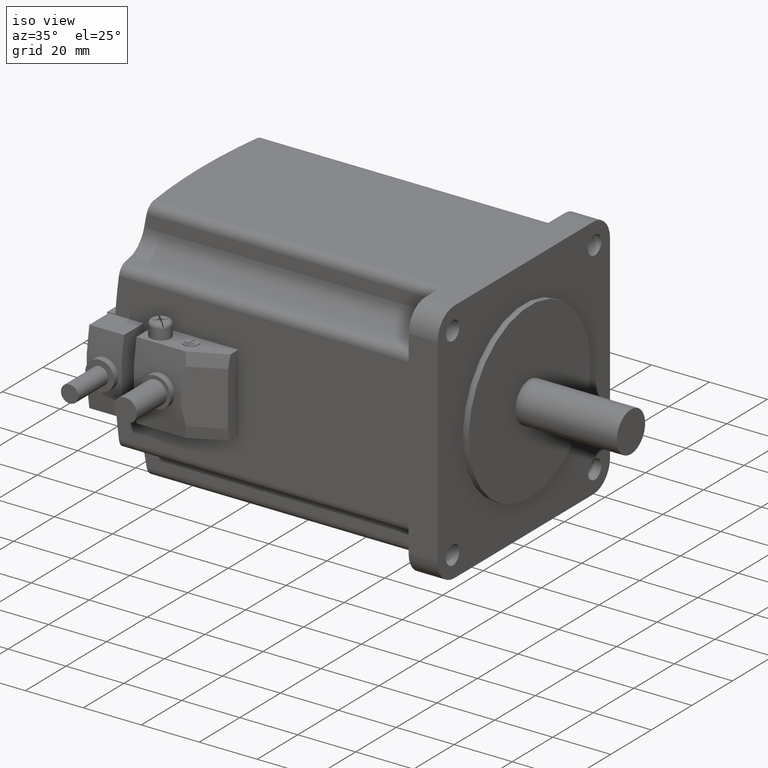
[diagram: clean part render]
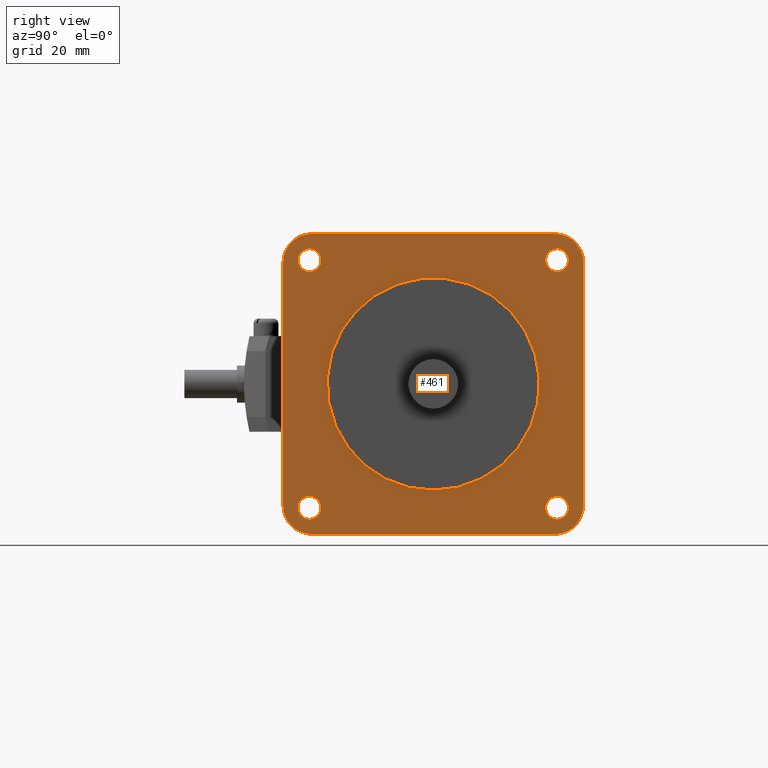
[diagram: tour spotlight — one face highlighted and labeled with its STEP entity id]
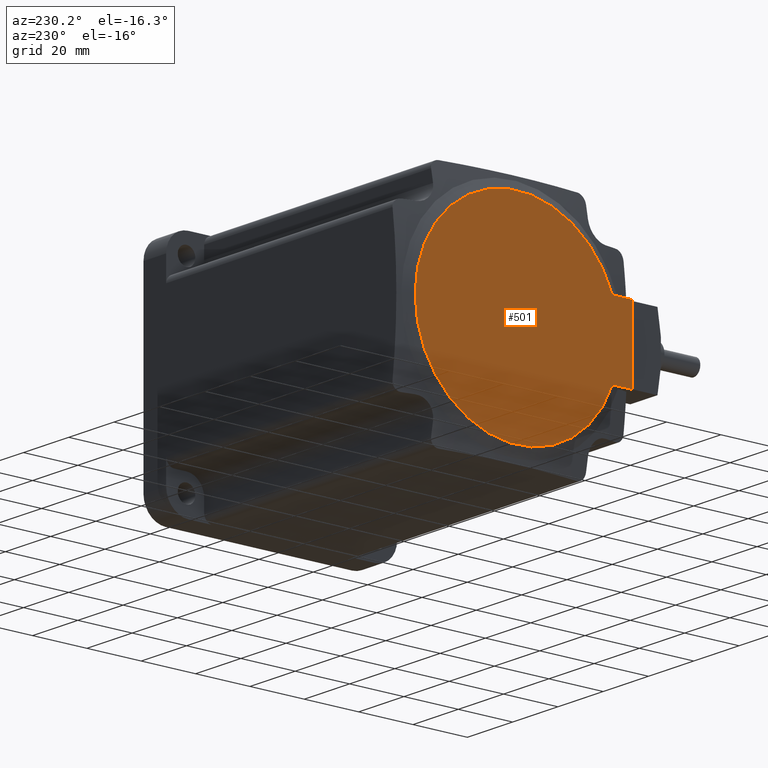
[diagram: tour spotlight — one face highlighted and labeled with its STEP entity id]
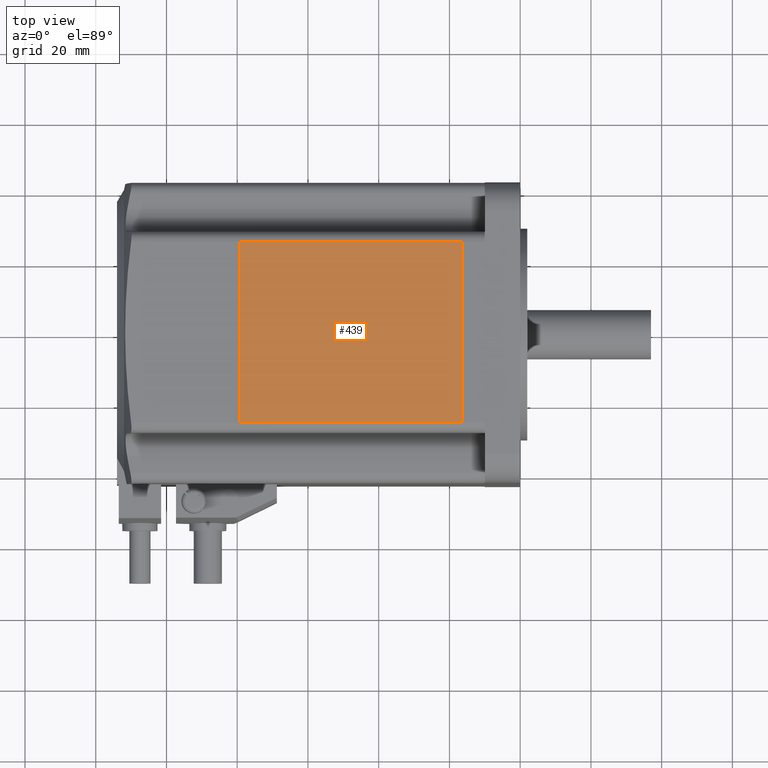
[diagram: tour spotlight — one face highlighted and labeled with its STEP entity id]
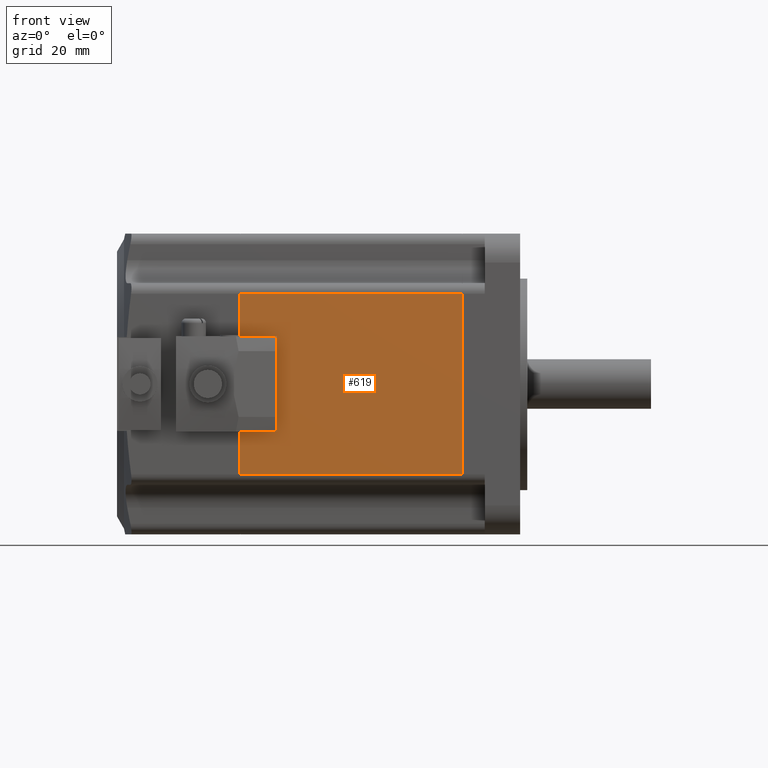
[diagram: tour spotlight — one face highlighted and labeled with its STEP entity id]
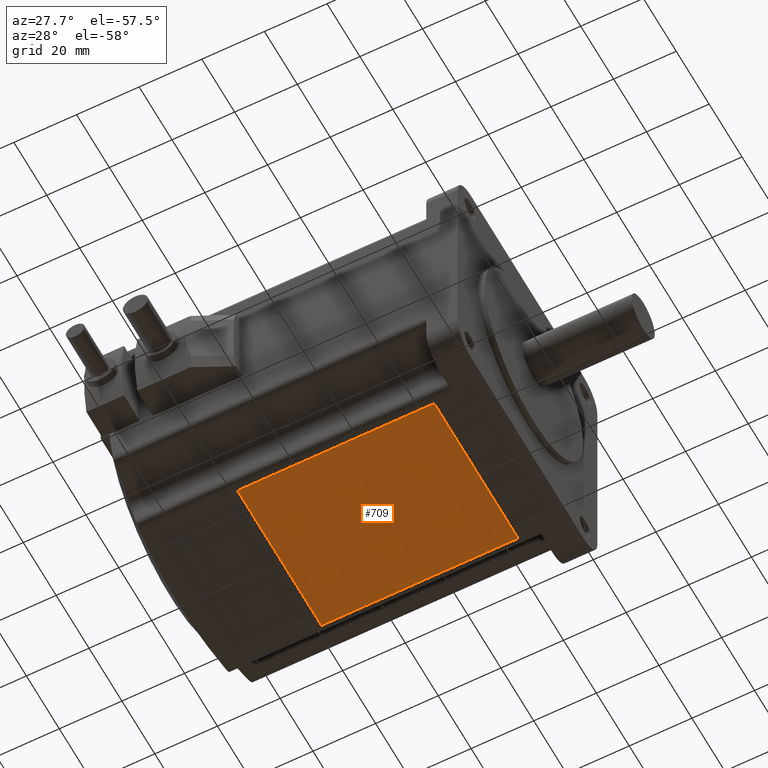
[diagram: tour spotlight — one face highlighted and labeled with its STEP entity id]
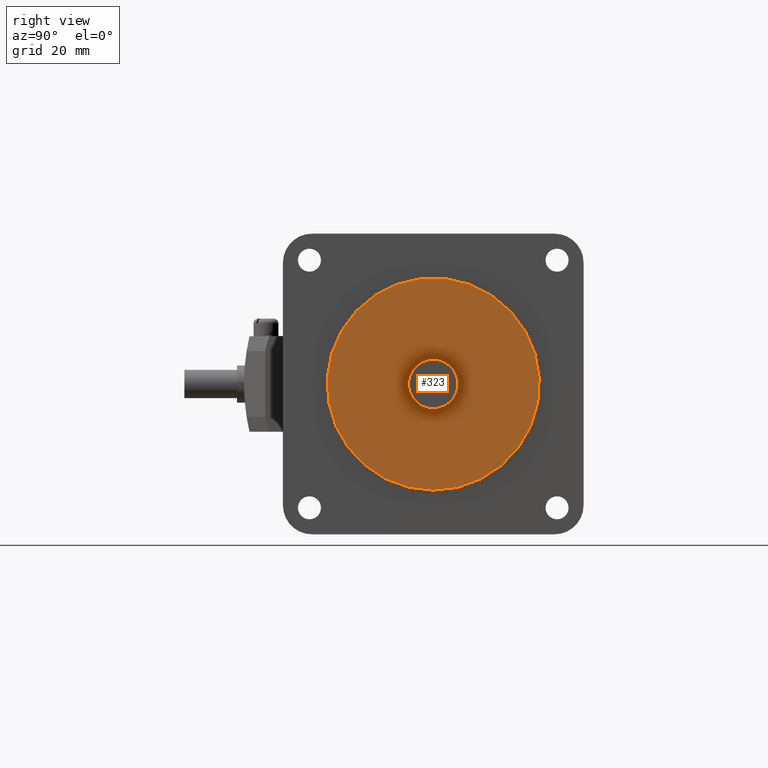
[diagram: tour spotlight — one face highlighted and labeled with its STEP entity id]
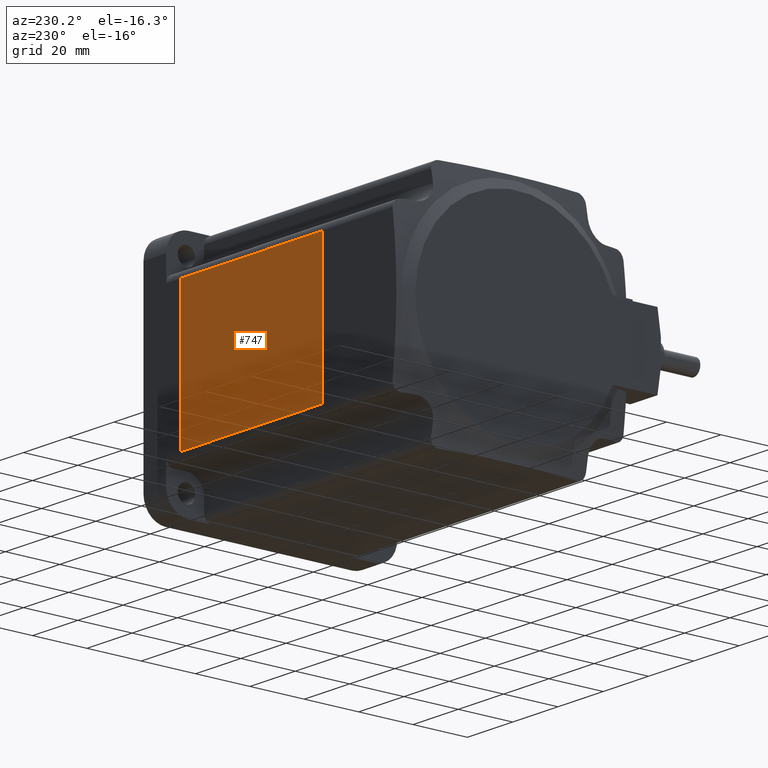
[diagram: tour spotlight — one face highlighted and labeled with its STEP entity id]
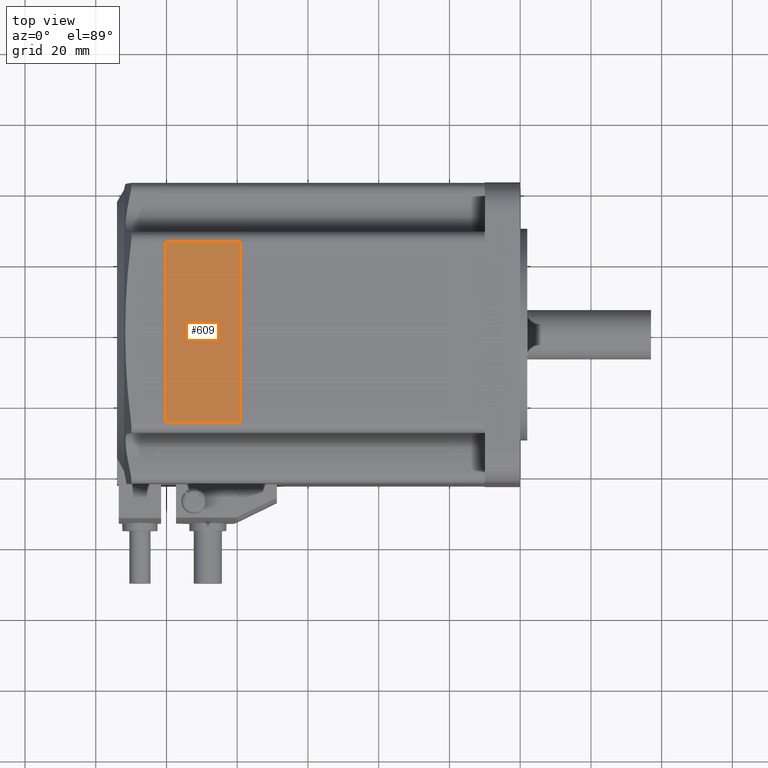
[diagram: tour spotlight — one face highlighted and labeled with its STEP entity id]
A machine part: a face-by-face anatomy tour. The part has 261 B-rep faces; the first image is the clean iso view, then the 8 largest visible faces are spotlighted one at a time (largest first), each with its STEP entity span.

Face 1 — right view, entity #461. In plain terms, the highlighted planar face has unit normal (1, 0, 0).
Definition (entity closure, byte-faithful):
#461 = ADVANCED_FACE( '', ( #1100, #1101, #1102, #1103, #1104, #1105 ), #1106, .T. );
#1100 = FACE_BOUND( '', #1928, .T. );
#1101 = FACE_BOUND( '', #1929, .T. );
#1102 = FACE_BOUND( '', #1930, .T. );
#1103 = FACE_BOUND( '', #1931, .T. );
#1104 = FACE_BOUND( '', #1932, .T. );
#1105 = FACE_OUTER_BOUND( '', #1933, .T. );
#1106 = PLANE( '', #1934 );
#1928 = EDGE_LOOP( '', ( #3280 ) );
#1929 = EDGE_LOOP( '', ( #3281 ) );
#1930 = EDGE_LOOP( '', ( #3282 ) );
#1931 = EDGE_LOOP( '', ( #3283 ) );
#1932 = EDGE_LOOP( '', ( #3284 ) );
#1933 = EDGE_LOOP( '', ( #3285, #3286, #3287, #3288, #3289, #3290, #3291, #3292 ) );
#1934 = AXIS2_PLACEMENT_3D( '', #3293, #3294, #3295 );
#3280 = ORIENTED_EDGE( '', *, *, #4937, .F. );
#3281 = ORIENTED_EDGE( '', *, *, #5396, .F. );
#3282 = ORIENTED_EDGE( '', *, *, #4979, .F. );
#3283 = ORIENTED_EDGE( '', *, *, #5397, .F. );
#3284 = ORIENTED_EDGE( '', *, *, #5212, .F. );
#3285 = ORIENTED_EDGE( '', *, *, #5301, .T. );
#3286 = ORIENTED_EDGE( '', *, *, #5398, .T. );
#3287 = ORIENTED_EDGE( '', *, *, #5018, .T. );
#3288 = ORIENTED_EDGE( '', *, *, #5208, .T. );
#3289 = ORIENTED_EDGE( '', *, *, #5399, .T. );
#3290 = ORIENTED_EDGE( '', *, *, #5226, .T. );
#3291 = ORIENTED_EDGE( '', *, *, #4951, .T. );
#3292 = ORIENTED_EDGE( '', *, *, #5400, .T. );
#3293 = CARTESIAN_POINT( '', ( 0.000000000000000, 34.3000000000000, 34.3000000000000 ) );
#3294 = DIRECTION( '', ( 1.00000000000000, 0.000000000000000, 0.000000000000000 ) );
#3295 = DIRECTION( '', ( 0.000000000000000, 0.000000000000000, -1.00000000000000 ) );
#4937 = EDGE_CURVE( '', #5911, #5911, #5912, .T. );
#4951 = EDGE_CURVE( '', #5937, #5935, #5938, .T. );
#4979 = EDGE_CURVE( '', #5986, #5986, #5987, .T. );
#5018 = EDGE_CURVE( '', #6057, #6055, #6058, .T. );
#5208 = EDGE_CURVE( '', #6055, #6383, #6385, .T. );
#5212 = EDGE_CURVE( '', #6390, #6390, #6391, .T. );
#5226 = EDGE_CURVE( '', #6415, #5937, #6416, .T. );
#5301 = EDGE_CURVE( '', #6541, #6539, #6542, .T. );
#5396 = EDGE_CURVE( '', #6688, #6688, #6689, .T. );
#5397 = EDGE_CURVE( '', #6690, #6690, #6691, .T. );
#5398 = EDGE_CURVE( '', #6539, #6057, #6692, .T. );
#5399 = EDGE_CURVE( '', #6383, #6415, #6693, .T. );
#5400 = EDGE_CURVE( '', #5935, #6541, #6694, .T. );
#5911 = VERTEX_POINT( '', #7357 );
#5912 = CIRCLE( '', #7358, 30.0000000000000 );
#5935 = VERTEX_POINT( '', #7389 );
#5937 = VERTEX_POINT( '', #7392 );
#5938 = CIRCLE( '', #7393, 8.20000000000000 );
#5986 = VERTEX_POINT( '', #7474 );
#5987 = CIRCLE( '', #7475, 3.25000000000000 );
#6055 = VERTEX_POINT( '', #7582 );
#6057 = VERTEX_POINT( '', #7585 );
#6058 = CIRCLE( '', #7586, 8.20000000000000 );
#6383 = VERTEX_POINT( '', #8055 );
#6385 = LINE( '', #8058, #8059 );
#6390 = VERTEX_POINT( '', #8066 );
#6391 = CIRCLE( '', #8067, 3.25000000000000 );
#6415 = VERTEX_POINT( '', #8101 );
#6416 = LINE( '', #8102, #8103 );
#6539 = VERTEX_POINT( '', #8303 );
#6541 = VERTEX_POINT( '', #8306 );
#6542 = CIRCLE( '', #8307, 8.20000000000000 );
#6688 = VERTEX_POINT( '', #8534 );
#6689 = CIRCLE( '', #8535, 3.25000000000000 );
#6690 = VERTEX_POINT( '', #8536 );
#6691 = CIRCLE( '', #8537, 3.25000000000000 );
#6692 = LINE( '', #8538, #8539 );
#6693 = CIRCLE( '', #8540, 8.20000000000000 );
#6694 = LINE( '', #8541, #8542 );
#7357 = CARTESIAN_POINT( '', ( 0.000000000000000, 0.000000000000000, -30.0000000000000 ) );
#7358 = AXIS2_PLACEMENT_3D( '', #9653, #9654, #9655 );
#7389 = CARTESIAN_POINT( '', ( 0.000000000000000, 42.5000000000000, -34.3000000000000 ) );
#7392 = CARTESIAN_POINT( '', ( 0.000000000000000, 34.3000000000000, -42.5000000000000 ) );
#7393 = AXIS2_PLACEMENT_3D( '', #9668, #9669, #9670 );
#7474 = CARTESIAN_POINT( '', ( 0.000000000000000, 35.0000000000000, 31.7500000000000 ) );
#7475 = AXIS2_PLACEMENT_3D( '', #9705, #9706, #9707 );
#7582 = CARTESIAN_POINT( '', ( 0.000000000000000, -42.5000000000000, 34.3000000000000 ) );
#7585 = CARTESIAN_POINT( '', ( 0.000000000000000, -34.3000000000000, 42.5000000000000 ) );
#7586 = AXIS2_PLACEMENT_3D( '', #9757, #9758, #9759 );
#8055 = CARTESIAN_POINT( '', ( 0.000000000000000, -42.5000000000000, -34.3000000000000 ) );
#8058 = CARTESIAN_POINT( '', ( 0.000000000000000, -42.5000000000000, 34.3000000000000 ) );
#8059 = VECTOR( '', #10014, 1000.00000000000 );
#8066 = CARTESIAN_POINT( '', ( 0.000000000000000, 35.0000000000000, -38.2500000000000 ) );
#8067 = AXIS2_PLACEMENT_3D( '', #10017, #10018, #10019 );
#8101 = CARTESIAN_POINT( '', ( 0.000000000000000, -34.3000000000000, -42.5000000000000 ) );
#8102 = CARTESIAN_POINT( '', ( 0.000000000000000, -34.3000000000000, -42.5000000000000 ) );
#8103 = VECTOR( '', #10030, 1000.00000000000 );
#8303 = CARTESIAN_POINT( '', ( 0.000000000000000, 34.3000000000000, 42.5000000000000 ) );
#8306 = CARTESIAN_POINT( '', ( 0.000000000000000, 42.5000000000000, 34.3000000000000 ) );
#8307 = AXIS2_PLACEMENT_3D( '', #10140, #10141, #10142 );
#8534 = CARTESIAN_POINT( '', ( 0.000000000000000, -35.0000000000000, 31.7500000000000 ) );
#8535 = AXIS2_PLACEMENT_3D( '', #10255, #10256, #10257 );
#8536 = CARTESIAN_POINT( '', ( 0.000000000000000, -35.0000000000000, -38.2500000000000 ) );
#8537 = AXIS2_PLACEMENT_3D( '', #10258, #10259, #10260 );
#8538 = CARTESIAN_POINT( '', ( 0.000000000000000, 34.3000000000000, 42.5000000000000 ) );
#8539 = VECTOR( '', #10261, 1000.00000000000 );
#8540 = AXIS2_PLACEMENT_3D( '', #10262, #10263, #10264 );
#8541 = CARTESIAN_POINT( '', ( 0.000000000000000, 42.5000000000000, -34.3000000000000 ) );
#8542 = VECTOR( '', #10265, 1000.00000000000 );
#9653 = CARTESIAN_POINT( '', ( 0.000000000000000, 0.000000000000000, 0.000000000000000 ) );
#9654 = DIRECTION( '', ( 1.00000000000000, 0.000000000000000, 0.000000000000000 ) );
#9655 = DIRECTION( '', ( 0.000000000000000, 0.000000000000000, -1.00000000000000 ) );
#9668 = CARTESIAN_POINT( '', ( 0.000000000000000, 34.3000000000000, -34.3000000000000 ) );
#9669 = DIRECTION( '', ( 1.00000000000000, 0.000000000000000, 0.000000000000000 ) );
#9670 = DIRECTION( '', ( 0.000000000000000, 0.000000000000000, -1.00000000000000 ) );
#9705 = CARTESIAN_POINT( '', ( 0.000000000000000, 35.0000000000000, 35.0000000000000 ) );
#9706 = DIRECTION( '', ( 1.00000000000000, 0.000000000000000, 0.000000000000000 ) );
#9707 = DIRECTION( '', ( 0.000000000000000, 0.000000000000000, -1.00000000000000 ) );
#9757 = CARTESIAN_POINT( '', ( 0.000000000000000, -34.3000000000000, 34.3000000000000 ) );
#9758 = DIRECTION( '', ( 1.00000000000000, 0.000000000000000, 0.000000000000000 ) );
#9759 = DIRECTION( '', ( 0.000000000000000, 0.000000000000000, -1.00000000000000 ) );
#10014 = DIRECTION( '', ( 0.000000000000000, 0.000000000000000, -1.00000000000000 ) );
#10017 = CARTESIAN_POINT( '', ( 0.000000000000000, 35.0000000000000, -35.0000000000000 ) );
#10018 = DIRECTION( '', ( 1.00000000000000, 0.000000000000000, 0.000000000000000 ) );
#10019 = DIRECTION( '', ( 0.000000000000000, 0.000000000000000, -1.00000000000000 ) );
#10030 = DIRECTION( '', ( 0.000000000000000, 1.00000000000000, 0.000000000000000 ) );
#10140 = CARTESIAN_POINT( '', ( 0.000000000000000, 34.3000000000000, 34.3000000000000 ) );
#10141 = DIRECTION( '', ( 1.00000000000000, 0.000000000000000, 0.000000000000000 ) );
#10142 = DIRECTION( '', ( 0.000000000000000, 0.000000000000000, -1.00000000000000 ) );
#10255 = CARTESIAN_POINT( '', ( 0.000000000000000, -35.0000000000000, 35.0000000000000 ) );
#10256 = DIRECTION( '', ( 1.00000000000000, 0.000000000000000, 0.000000000000000 ) );
#10257 = DIRECTION( '', ( 0.000000000000000, 0.000000000000000, -1.00000000000000 ) );
#10258 = CARTESIAN_POINT( '', ( 0.000000000000000, -35.0000000000000, -35.0000000000000 ) );
#10259 = DIRECTION( '', ( 1.00000000000000, 0.000000000000000, 0.000000000000000 ) );
#10260 = DIRECTION( '', ( 0.000000000000000, 0.000000000000000, -1.00000000000000 ) );
#10261 = DIRECTION( '', ( 0.000000000000000, -1.00000000000000, 0.000000000000000 ) );
#10262 = CARTESIAN_POINT( '', ( 0.000000000000000, -34.3000000000000, -34.3000000000000 ) );
#10263 = DIRECTION( '', ( 1.00000000000000, 0.000000000000000, 0.000000000000000 ) );
#10264 = DIRECTION( '', ( 0.000000000000000, 0.000000000000000, -1.00000000000000 ) );
#10265 = DIRECTION( '', ( 0.000000000000000, 0.000000000000000, 1.00000000000000 ) );

Face 2 — auxiliary view, entity #501. In plain terms, the highlighted planar face has unit normal (1, 0, 0).
Definition (entity closure, byte-faithful):
#501 = ADVANCED_FACE( '', ( #1166 ), #1167, .F. );
#1166 = FACE_OUTER_BOUND( '', #1994, .T. );
#1167 = PLANE( '', #1995 );
#1994 = EDGE_LOOP( '', ( #3456, #3457, #3458, #3459 ) );
#1995 = AXIS2_PLACEMENT_3D( '', #3460, #3461, #3462 );
#3456 = ORIENTED_EDGE( '', *, *, #5409, .F. );
#3457 = ORIENTED_EDGE( '', *, *, #5473, .F. );
#3458 = ORIENTED_EDGE( '', *, *, #5474, .F. );
#3459 = ORIENTED_EDGE( '', *, *, #4956, .F. );
#3460 = CARTESIAN_POINT( '', ( -114.000000000000, 34.3000000000000, 34.3000000000000 ) );
#3461 = DIRECTION( '', ( 1.00000000000000, 0.000000000000000, 0.000000000000000 ) );
#3462 = DIRECTION( '', ( 0.000000000000000, 0.000000000000000, -1.00000000000000 ) );
#4956 = EDGE_CURVE( '', #5944, #5946, #5947, .T. );
#5409 = EDGE_CURVE( '', #6707, #5944, #6709, .T. );
#5473 = EDGE_CURVE( '', #6798, #6707, #6799, .T. );
#5474 = EDGE_CURVE( '', #5946, #6798, #6800, .T. );
#5944 = VERTEX_POINT( '', #7400 );
#5946 = VERTEX_POINT( '', #7405 );
#5947 = LINE( '', #7406, #7407 );
#6707 = VERTEX_POINT( '', #8559 );
#6709 = CIRCLE( '', #8564, 37.5000000000000 );
#6798 = VERTEX_POINT( '', #8713 );
#6799 = LINE( '', #8714, #8715 );
#6800 = LINE( '', #8716, #8717 );
#7400 = CARTESIAN_POINT( '', ( -114.000000000000, -35.0811559102604, 13.2500000000000 ) );
#7405 = CARTESIAN_POINT( '', ( -114.000000000000, -42.5000000000000, 13.2500000000000 ) );
#7406 = CARTESIAN_POINT( '', ( -114.000000000000, -22.5000000000000, 13.2500000000000 ) );
#7407 = VECTOR( '', #9675, 1000.00000000000 );
#8559 = CARTESIAN_POINT( '', ( -114.000000000000, -35.0811559102604, -13.2500000000000 ) );
#8564 = AXIS2_PLACEMENT_3D( '', #10273, #10274, #10275 );
#8713 = CARTESIAN_POINT( '', ( -114.000000000000, -42.5000000000000, -13.2500000000000 ) );
#8714 = CARTESIAN_POINT( '', ( -114.000000000000, -42.5000000000000, -13.2500000000000 ) );
#8715 = VECTOR( '', #10341, 1000.00000000000 );
#8716 = CARTESIAN_POINT( '', ( -114.000000000000, -42.5000000000000, 13.2500000000000 ) );
#8717 = VECTOR( '', #10342, 1000.00000000000 );
#9675 = DIRECTION( '', ( 0.000000000000000, -1.00000000000000, 0.000000000000000 ) );
#10273 = CARTESIAN_POINT( '', ( -114.000000000000, 0.000000000000000, 0.000000000000000 ) );
#10274 = DIRECTION( '', ( 1.00000000000000, 0.000000000000000, -0.000000000000000 ) );
#10275 = DIRECTION( '', ( -0.000000000000000, 0.000000000000000, -1.00000000000000 ) );
#10341 = DIRECTION( '', ( 0.000000000000000, 1.00000000000000, 0.000000000000000 ) );
#10342 = DIRECTION( '', ( 0.000000000000000, 0.000000000000000, -1.00000000000000 ) );

Face 3 — top view, entity #439. In plain terms, the highlighted planar face has unit normal (-0, 0, 1).
Definition (entity closure, byte-faithful):
#439 = ADVANCED_FACE( '', ( #1066 ), #1067, .T. );
#1066 = FACE_OUTER_BOUND( '', #1894, .T. );
#1067 = PLANE( '', #1895 );
#1894 = EDGE_LOOP( '', ( #3194, #3195, #3196, #3197 ) );
#1895 = AXIS2_PLACEMENT_3D( '', #3198, #3199, #3200 );
#3194 = ORIENTED_EDGE( '', *, *, #5359, .F. );
#3195 = ORIENTED_EDGE( '', *, *, #5360, .F. );
#3196 = ORIENTED_EDGE( '', *, *, #5098, .T. );
#3197 = ORIENTED_EDGE( '', *, *, #5361, .T. );
#3198 = CARTESIAN_POINT( '', ( -114.000000000000, 34.3000000000000, 42.5000000000000 ) );
#3199 = DIRECTION( '', ( -0.000000000000000, 0.000000000000000, 1.00000000000000 ) );
#3200 = DIRECTION( '', ( 1.00000000000000, 0.000000000000000, 0.000000000000000 ) );
#5098 = EDGE_CURVE( '', #6198, #6196, #6199, .T. );
#5359 = EDGE_CURVE( '', #6637, #6638, #6639, .T. );
#5360 = EDGE_CURVE( '', #6198, #6637, #6640, .T. );
#5361 = EDGE_CURVE( '', #6196, #6638, #6641, .T. );
#6196 = VERTEX_POINT( '', #7775 );
#6198 = VERTEX_POINT( '', #7777 );
#6199 = LINE( '', #7778, #7779 );
#6637 = VERTEX_POINT( '', #8442 );
#6638 = VERTEX_POINT( '', #8443 );
#6639 = LINE( '', #8444, #8445 );
#6640 = LINE( '', #8446, #8447 );
#6641 = LINE( '', #8448, #8449 );
#7775 = CARTESIAN_POINT( '', ( -16.4000000000000, 25.5000000000000, 42.5000000000000 ) );
#7777 = CARTESIAN_POINT( '', ( -16.4000000000000, -25.5000000000000, 42.5000000000000 ) );
#7778 = CARTESIAN_POINT( '', ( -16.4000000000000, 34.3000000000000, 42.5000000000000 ) );
#7779 = VECTOR( '', #9872, 1000.00000000000 );
#8442 = CARTESIAN_POINT( '', ( -79.1900000000000, -25.5000000000000, 42.5000000000000 ) );
#8443 = CARTESIAN_POINT( '', ( -79.1900000000000, 25.5000000000000, 42.5000000000000 ) );
#8444 = CARTESIAN_POINT( '', ( -79.1900000000000, 34.3000000000000, 42.5000000000000 ) );
#8445 = VECTOR( '', #10217, 1000.00000000000 );
#8446 = CARTESIAN_POINT( '', ( -9.99999999999999, -25.5000000000000, 42.5000000000000 ) );
#8447 = VECTOR( '', #10218, 1000.00000000000 );
#8448 = CARTESIAN_POINT( '', ( -9.99999999999999, 25.5000000000000, 42.5000000000000 ) );
#8449 = VECTOR( '', #10219, 1000.00000000000 );
#9872 = DIRECTION( '', ( 0.000000000000000, 1.00000000000000, -0.000000000000000 ) );
#10217 = DIRECTION( '', ( 0.000000000000000, 1.00000000000000, -0.000000000000000 ) );
#10218 = DIRECTION( '', ( -1.00000000000000, -0.000000000000000, -0.000000000000000 ) );
#10219 = DIRECTION( '', ( -1.00000000000000, -0.000000000000000, -0.000000000000000 ) );

Face 4 — front view, entity #619. In plain terms, the highlighted planar face has unit normal (0, -1, 0).
Definition (entity closure, byte-faithful):
#619 = ADVANCED_FACE( '', ( #1349 ), #1350, .T. );
#1349 = FACE_OUTER_BOUND( '', #2177, .T. );
#1350 = PLANE( '', #2178 );
#2177 = EDGE_LOOP( '', ( #3957, #3958, #3959, #3960, #3961, #3962, #3963, #3964 ) );
#2178 = AXIS2_PLACEMENT_3D( '', #3965, #3966, #3967 );
#3957 = ORIENTED_EDGE( '', *, *, #5671, .T. );
#3958 = ORIENTED_EDGE( '', *, *, #5342, .F. );
#3959 = ORIENTED_EDGE( '', *, *, #5080, .T. );
#3960 = ORIENTED_EDGE( '', *, *, #4988, .T. );
#3961 = ORIENTED_EDGE( '', *, *, #5672, .T. );
#3962 = ORIENTED_EDGE( '', *, *, #5498, .F. );
#3963 = ORIENTED_EDGE( '', *, *, #5673, .T. );
#3964 = ORIENTED_EDGE( '', *, *, #5644, .T. );
#3965 = CARTESIAN_POINT( '', ( -114.000000000000, -42.5000000000000, 34.3000000000000 ) );
#3966 = DIRECTION( '', ( 0.000000000000000, -1.00000000000000, 0.000000000000000 ) );
#3967 = DIRECTION( '', ( 0.000000000000000, 0.000000000000000, -1.00000000000000 ) );
#4988 = EDGE_CURVE( '', #6003, #6001, #6004, .T. );
#5080 = EDGE_CURVE( '', #6162, #6003, #6163, .T. );
#5342 = EDGE_CURVE( '', #6162, #6610, #6611, .T. );
#5498 = EDGE_CURVE( '', #6834, #5900, #6836, .T. );
#5644 = EDGE_CURVE( '', #7034, #5901, #7035, .T. );
#5671 = EDGE_CURVE( '', #5901, #6610, #7070, .T. );
#5672 = EDGE_CURVE( '', #6001, #5900, #7071, .T. );
#5673 = EDGE_CURVE( '', #6834, #7034, #7072, .T. );
#5900 = VERTEX_POINT( '', #7342 );
#5901 = VERTEX_POINT( '', #7343 );
#6001 = VERTEX_POINT( '', #7494 );
#6003 = VERTEX_POINT( '', #7496 );
#6004 = LINE( '', #7497, #7498 );
#6162 = VERTEX_POINT( '', #7732 );
#6163 = LINE( '', #7733, #7734 );
#6610 = VERTEX_POINT( '', #8395 );
#6611 = LINE( '', #8396, #8397 );
#6834 = VERTEX_POINT( '', #8777 );
#6836 = LINE( '', #8780, #8781 );
#7034 = VERTEX_POINT( '', #9170 );
#7035 = LINE( '', #9171, #9172 );
#7070 = LINE( '', #9219, #9220 );
#7071 = LINE( '', #9221, #9222 );
#7072 = LINE( '', #9223, #9224 );
#7342 = CARTESIAN_POINT( '', ( -79.1900000000000, -42.5000000000000, 13.5000000000000 ) );
#7343 = CARTESIAN_POINT( '', ( -79.1900000000000, -42.5000000000000, -13.5000000000000 ) );
#7494 = CARTESIAN_POINT( '', ( -79.1900000000000, -42.5000000000000, 25.5000000000000 ) );
#7496 = CARTESIAN_POINT( '', ( -16.4000000000000, -42.5000000000000, 25.5000000000000 ) );
#7497 = CARTESIAN_POINT( '', ( -9.99999999999999, -42.5000000000000, 25.5000000000000 ) );
#7498 = VECTOR( '', #9716, 1000.00000000000 );
#7732 = CARTESIAN_POINT( '', ( -16.4000000000000, -42.5000000000000, -25.5000000000000 ) );
#7733 = CARTESIAN_POINT( '', ( -16.4000000000000, -42.5000000000000, 34.3000000000000 ) );
#7734 = VECTOR( '', #9836, 1000.00000000000 );
#8395 = CARTESIAN_POINT( '', ( -79.1900000000000, -42.5000000000000, -25.5000000000000 ) );
#8396 = CARTESIAN_POINT( '', ( -9.99999999999999, -42.5000000000000, -25.5000000000000 ) );
#8397 = VECTOR( '', #10199, 1000.00000000000 );
#8777 = CARTESIAN_POINT( '', ( -68.8000000000000, -42.5000000000000, 13.5000000000000 ) );
#8780 = CARTESIAN_POINT( '', ( -114.000000000000, -42.5000000000000, 13.5000000000000 ) );
#8781 = VECTOR( '', #10367, 1000.00000000000 );
#9170 = CARTESIAN_POINT( '', ( -68.8000000000000, -42.5000000000000, -13.5000000000000 ) );
#9171 = CARTESIAN_POINT( '', ( -114.000000000000, -42.5000000000000, -13.5000000000000 ) );
#9172 = VECTOR( '', #10535, 1000.00000000000 );
#9219 = CARTESIAN_POINT( '', ( -79.1900000000000, -42.5000000000000, 43.5000000000000 ) );
#9220 = VECTOR( '', #10560, 1000.00000000000 );
#9221 = CARTESIAN_POINT( '', ( -79.1900000000000, -42.5000000000000, 43.5000000000000 ) );
#9222 = VECTOR( '', #10561, 1000.00000000000 );
#9223 = CARTESIAN_POINT( '', ( -68.8000000000000, -42.5000000000000, 34.3000000000000 ) );
#9224 = VECTOR( '', #10562, 1000.00000000000 );
#9716 = DIRECTION( '', ( -1.00000000000000, -0.000000000000000, -0.000000000000000 ) );
#9836 = DIRECTION( '', ( -0.000000000000000, 0.000000000000000, 1.00000000000000 ) );
#10199 = DIRECTION( '', ( -1.00000000000000, -0.000000000000000, -0.000000000000000 ) );
#10367 = DIRECTION( '', ( -1.00000000000000, 0.000000000000000, 0.000000000000000 ) );
#10535 = DIRECTION( '', ( -1.00000000000000, 0.000000000000000, 0.000000000000000 ) );
#10560 = DIRECTION( '', ( 0.000000000000000, 0.000000000000000, -1.00000000000000 ) );
#10561 = DIRECTION( '', ( 0.000000000000000, 0.000000000000000, -1.00000000000000 ) );
#10562 = DIRECTION( '', ( 0.000000000000000, 0.000000000000000, -1.00000000000000 ) );

Face 5 — auxiliary view, entity #709. In plain terms, the highlighted planar face has unit normal (0, 0, -1).
Definition (entity closure, byte-faithful):
#709 = ADVANCED_FACE( '', ( #1490 ), #1491, .T. );
#1490 = FACE_OUTER_BOUND( '', #2318, .T. );
#1491 = PLANE( '', #2319 );
#2318 = EDGE_LOOP( '', ( #4383, #4384, #4385, #4386 ) );
#2319 = AXIS2_PLACEMENT_3D( '', #4387, #4388, #4389 );
#4383 = ORIENTED_EDGE( '', *, *, #5808, .F. );
#4384 = ORIENTED_EDGE( '', *, *, #5190, .F. );
#4385 = ORIENTED_EDGE( '', *, *, #5086, .T. );
#4386 = ORIENTED_EDGE( '', *, *, #5649, .T. );
#4387 = CARTESIAN_POINT( '', ( -114.000000000000, -34.3000000000000, -42.5000000000000 ) );
#4388 = DIRECTION( '', ( 0.000000000000000, 0.000000000000000, -1.00000000000000 ) );
#4389 = DIRECTION( '', ( -1.00000000000000, 0.000000000000000, 0.000000000000000 ) );
#5086 = EDGE_CURVE( '', #6174, #6172, #6175, .T. );
#5190 = EDGE_CURVE( '', #6174, #6352, #6353, .T. );
#5649 = EDGE_CURVE( '', #6172, #7039, #7041, .T. );
#5808 = EDGE_CURVE( '', #6352, #7039, #7240, .T. );
#6172 = VERTEX_POINT( '', #7745 );
#6174 = VERTEX_POINT( '', #7747 );
#6175 = LINE( '', #7748, #7749 );
#6352 = VERTEX_POINT( '', #8013 );
#6353 = LINE( '', #8014, #8015 );
#7039 = VERTEX_POINT( '', #9177 );
#7041 = LINE( '', #9179, #9180 );
#7240 = LINE( '', #9458, #9459 );
#7745 = CARTESIAN_POINT( '', ( -16.4000000000000, -25.5000000000000, -42.5000000000000 ) );
#7747 = CARTESIAN_POINT( '', ( -16.4000000000000, 25.5000000000000, -42.5000000000000 ) );
#7748 = CARTESIAN_POINT( '', ( -16.4000000000000, -34.3000000000000, -42.5000000000000 ) );
#7749 = VECTOR( '', #9848, 1000.00000000000 );
#8013 = CARTESIAN_POINT( '', ( -79.1900000000000, 25.5000000000000, -42.5000000000000 ) );
#8014 = CARTESIAN_POINT( '', ( -9.99999999999999, 25.5000000000000, -42.5000000000000 ) );
#8015 = VECTOR( '', #9993, 1000.00000000000 );
#9177 = CARTESIAN_POINT( '', ( -79.1900000000000, -25.5000000000000, -42.5000000000000 ) );
#9179 = CARTESIAN_POINT( '', ( -9.99999999999999, -25.5000000000000, -42.5000000000000 ) );
#9180 = VECTOR( '', #10540, 1000.00000000000 );
#9458 = CARTESIAN_POINT( '', ( -79.1900000000000, -34.3000000000000, -42.5000000000000 ) );
#9459 = VECTOR( '', #10717, 1000.00000000000 );
#9848 = DIRECTION( '', ( 0.000000000000000, -1.00000000000000, 0.000000000000000 ) );
#9993 = DIRECTION( '', ( -1.00000000000000, -0.000000000000000, -0.000000000000000 ) );
#10540 = DIRECTION( '', ( -1.00000000000000, -0.000000000000000, -0.000000000000000 ) );
#10717 = DIRECTION( '', ( 0.000000000000000, -1.00000000000000, 0.000000000000000 ) );

Face 6 — right view, entity #323. In plain terms, the highlighted planar face has unit normal (1, 0, 0).
Definition (entity closure, byte-faithful):
#323 = ADVANCED_FACE( '', ( #884, #885 ), #886, .T. );
#884 = FACE_BOUND( '', #1712, .T. );
#885 = FACE_OUTER_BOUND( '', #1713, .T. );
#886 = PLANE( '', #1714 );
#1712 = EDGE_LOOP( '', ( #2627 ) );
#1713 = EDGE_LOOP( '', ( #2628 ) );
#1714 = AXIS2_PLACEMENT_3D( '', #2629, #2630, #2631 );
#2627 = ORIENTED_EDGE( '', *, *, #5021, .T. );
#2628 = ORIENTED_EDGE( '', *, *, #4936, .T. );
#2629 = CARTESIAN_POINT( '', ( 2.00000000000000, 0.000000000000000, 0.000000000000000 ) );
#2630 = DIRECTION( '', ( 1.00000000000000, 0.000000000000000, 0.000000000000000 ) );
#2631 = DIRECTION( '', ( 0.000000000000000, 0.000000000000000, -1.00000000000000 ) );
#4936 = EDGE_CURVE( '', #5909, #5909, #5910, .T. );
#5021 = EDGE_CURVE( '', #6061, #6061, #6062, .F. );
#5909 = VERTEX_POINT( '', #7355 );
#5910 = CIRCLE( '', #7356, 30.0000000000000 );
#6061 = VERTEX_POINT( '', #7590 );
#6062 = CIRCLE( '', #7591, 7.00000000000000 );
#7355 = CARTESIAN_POINT( '', ( 2.00000000000000, 0.000000000000000, -30.0000000000000 ) );
#7356 = AXIS2_PLACEMENT_3D( '', #9650, #9651, #9652 );
#7590 = CARTESIAN_POINT( '', ( 2.00000000000000, 0.000000000000000, -7.00000000000000 ) );
#7591 = AXIS2_PLACEMENT_3D( '', #9761, #9762, #9763 );
#9650 = CARTESIAN_POINT( '', ( 2.00000000000000, 0.000000000000000, 0.000000000000000 ) );
#9651 = DIRECTION( '', ( 1.00000000000000, 0.000000000000000, 0.000000000000000 ) );
#9652 = DIRECTION( '', ( 0.000000000000000, 0.000000000000000, -1.00000000000000 ) );
#9761 = CARTESIAN_POINT( '', ( 2.00000000000000, 0.000000000000000, 0.000000000000000 ) );
#9762 = DIRECTION( '', ( 1.00000000000000, 0.000000000000000, 0.000000000000000 ) );
#9763 = DIRECTION( '', ( 0.000000000000000, 0.000000000000000, -1.00000000000000 ) );

Face 7 — auxiliary view, entity #747. In plain terms, the highlighted planar face has unit normal (0, 1, 0).
Definition (entity closure, byte-faithful):
#747 = ADVANCED_FACE( '', ( #1550 ), #1551, .T. );
#1550 = FACE_OUTER_BOUND( '', #2378, .T. );
#1551 = PLANE( '', #2379 );
#2378 = EDGE_LOOP( '', ( #4585, #4586, #4587, #4588 ) );
#2379 = AXIS2_PLACEMENT_3D( '', #4589, #4590, #4591 );
#4585 = ORIENTED_EDGE( '', *, *, #5845, .F. );
#4586 = ORIENTED_EDGE( '', *, *, #5846, .F. );
#4587 = ORIENTED_EDGE( '', *, *, #5092, .T. );
#4588 = ORIENTED_EDGE( '', *, *, #5587, .T. );
#4589 = CARTESIAN_POINT( '', ( -114.000000000000, 42.5000000000000, -34.3000000000000 ) );
#4590 = DIRECTION( '', ( 0.000000000000000, 1.00000000000000, 0.000000000000000 ) );
#4591 = DIRECTION( '', ( 0.000000000000000, -0.000000000000000, 1.00000000000000 ) );
#5092 = EDGE_CURVE( '', #6186, #6184, #6187, .T. );
#5587 = EDGE_CURVE( '', #6184, #6958, #6960, .T. );
#5845 = EDGE_CURVE( '', #7280, #6958, #7281, .T. );
#5846 = EDGE_CURVE( '', #6186, #7280, #7282, .T. );
#6184 = VERTEX_POINT( '', #7760 );
#6186 = VERTEX_POINT( '', #7762 );
#6187 = LINE( '', #7763, #7764 );
#6958 = VERTEX_POINT( '', #9015 );
#6960 = LINE( '', #9017, #9018 );
#7280 = VERTEX_POINT( '', #9509 );
#7281 = LINE( '', #9510, #9511 );
#7282 = LINE( '', #9512, #9513 );
#7760 = CARTESIAN_POINT( '', ( -16.4000000000000, 42.5000000000000, -25.5000000000000 ) );
#7762 = CARTESIAN_POINT( '', ( -16.4000000000000, 42.5000000000000, 25.5000000000000 ) );
#7763 = CARTESIAN_POINT( '', ( -16.4000000000000, 42.5000000000000, -34.3000000000000 ) );
#7764 = VECTOR( '', #9860, 1000.00000000000 );
#9015 = CARTESIAN_POINT( '', ( -79.1900000000000, 42.5000000000000, -25.5000000000000 ) );
#9017 = CARTESIAN_POINT( '', ( -9.99999999999999, 42.5000000000000, -25.5000000000000 ) );
#9018 = VECTOR( '', #10473, 1000.00000000000 );
#9509 = CARTESIAN_POINT( '', ( -79.1900000000000, 42.5000000000000, 25.5000000000000 ) );
#9510 = CARTESIAN_POINT( '', ( -79.1900000000000, 42.5000000000000, -34.3000000000000 ) );
#9511 = VECTOR( '', #10749, 1000.00000000000 );
#9512 = CARTESIAN_POINT( '', ( -9.99999999999999, 42.5000000000000, 25.5000000000000 ) );
#9513 = VECTOR( '', #10750, 1000.00000000000 );
#9860 = DIRECTION( '', ( 0.000000000000000, 0.000000000000000, -1.00000000000000 ) );
#10473 = DIRECTION( '', ( -1.00000000000000, -0.000000000000000, -0.000000000000000 ) );
#10749 = DIRECTION( '', ( 0.000000000000000, 0.000000000000000, -1.00000000000000 ) );
#10750 = DIRECTION( '', ( -1.00000000000000, -0.000000000000000, -0.000000000000000 ) );

Face 8 — top view, entity #609. In plain terms, the highlighted planar face has unit normal (-0, 0, 1).
Definition (entity closure, byte-faithful):
#609 = ADVANCED_FACE( '', ( #1333 ), #1334, .T. );
#1333 = FACE_OUTER_BOUND( '', #2161, .T. );
#1334 = PLANE( '', #2162 );
#2161 = EDGE_LOOP( '', ( #3919, #3920, #3921, #3922 ) );
#2162 = AXIS2_PLACEMENT_3D( '', #3923, #3924, #3925 );
#3919 = ORIENTED_EDGE( '', *, *, #5656, .F. );
#3920 = ORIENTED_EDGE( '', *, *, #5657, .F. );
#3921 = ORIENTED_EDGE( '', *, *, #5658, .T. );
#3922 = ORIENTED_EDGE( '', *, *, #5543, .T. );
#3923 = CARTESIAN_POINT( '', ( -114.000000000000, 34.3000000000000, 42.5000000000000 ) );
#3924 = DIRECTION( '', ( -0.000000000000000, 0.000000000000000, 1.00000000000000 ) );
#3925 = DIRECTION( '', ( 1.00000000000000, 0.000000000000000, 0.000000000000000 ) );
#5543 = EDGE_CURVE( '', #6898, #6896, #6899, .T. );
#5656 = EDGE_CURVE( '', #7049, #6896, #7050, .T. );
#5657 = EDGE_CURVE( '', #7051, #7049, #7052, .T. );
#5658 = EDGE_CURVE( '', #7051, #6898, #7053, .T. );
#6896 = VERTEX_POINT( '', #8936 );
#6898 = VERTEX_POINT( '', #8938 );
#6899 = LINE( '', #8939, #8940 );
#7049 = VERTEX_POINT( '', #9188 );
#7050 = LINE( '', #9189, #9190 );
#7051 = VERTEX_POINT( '', #9191 );
#7052 = LINE( '', #9192, #9193 );
#7053 = LINE( '', #9194, #9195 );
#8936 = CARTESIAN_POINT( '', ( -100.190000000000, 25.5000000000000, 42.5000000000000 ) );
#8938 = CARTESIAN_POINT( '', ( -79.2000000000000, 25.5000000000000, 42.5000000000000 ) );
#8939 = CARTESIAN_POINT( '', ( -9.99999999999999, 25.5000000000000, 42.5000000000000 ) );
#8940 = VECTOR( '', #10414, 1000.00000000000 );
#9188 = CARTESIAN_POINT( '', ( -100.190000000000, -25.5000000000000, 42.5000000000000 ) );
#9189 = CARTESIAN_POINT( '', ( -100.190000000000, 34.3000000000000, 42.5000000000000 ) );
#9190 = VECTOR( '', #10550, 1000.00000000000 );
#9191 = CARTESIAN_POINT( '', ( -79.2000000000000, -25.5000000000000, 42.5000000000000 ) );
#9192 = CARTESIAN_POINT( '', ( -9.99999999999999, -25.5000000000000, 42.5000000000000 ) );
#9193 = VECTOR( '', #10551, 1000.00000000000 );
#9194 = CARTESIAN_POINT( '', ( -79.2000000000000, 34.3000000000000, 42.5000000000000 ) );
#9195 = VECTOR( '', #10552, 1000.00000000000 );
#10414 = DIRECTION( '', ( -1.00000000000000, -0.000000000000000, -0.000000000000000 ) );
#10550 = DIRECTION( '', ( 0.000000000000000, 1.00000000000000, -0.000000000000000 ) );
#10551 = DIRECTION( '', ( -1.00000000000000, -0.000000000000000, -0.000000000000000 ) );
#10552 = DIRECTION( '', ( 0.000000000000000, 1.00000000000000, -0.000000000000000 ) );